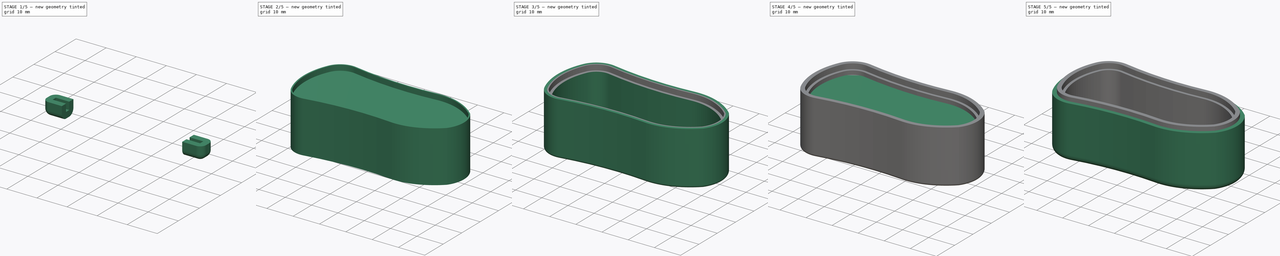
[diagram: build sequence overview — one tinted view per stage of 5, left to right]
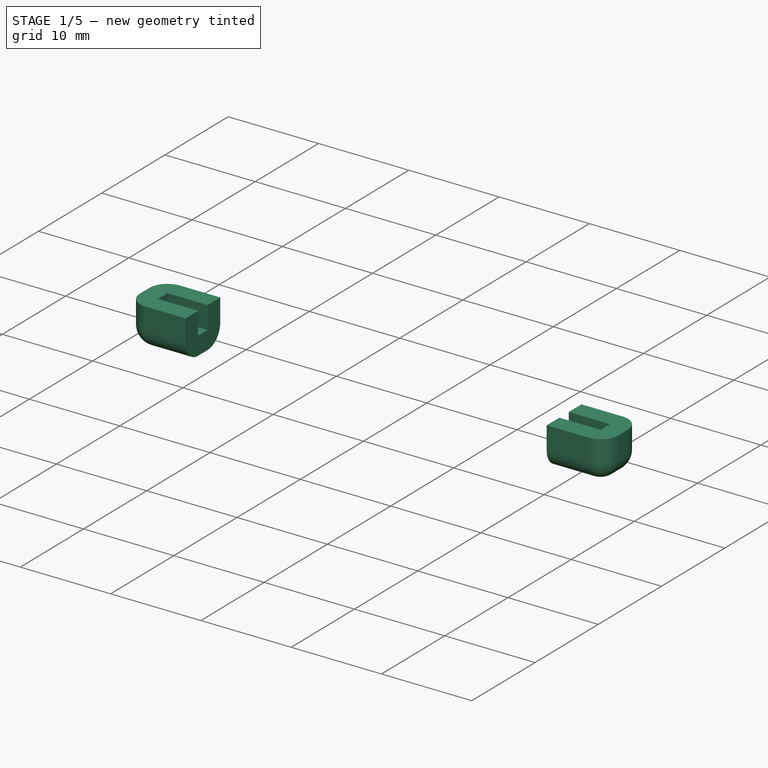
[diagram: stage 1 of 5 — iso view after this stage's code; geometry added in this stage tinted green]
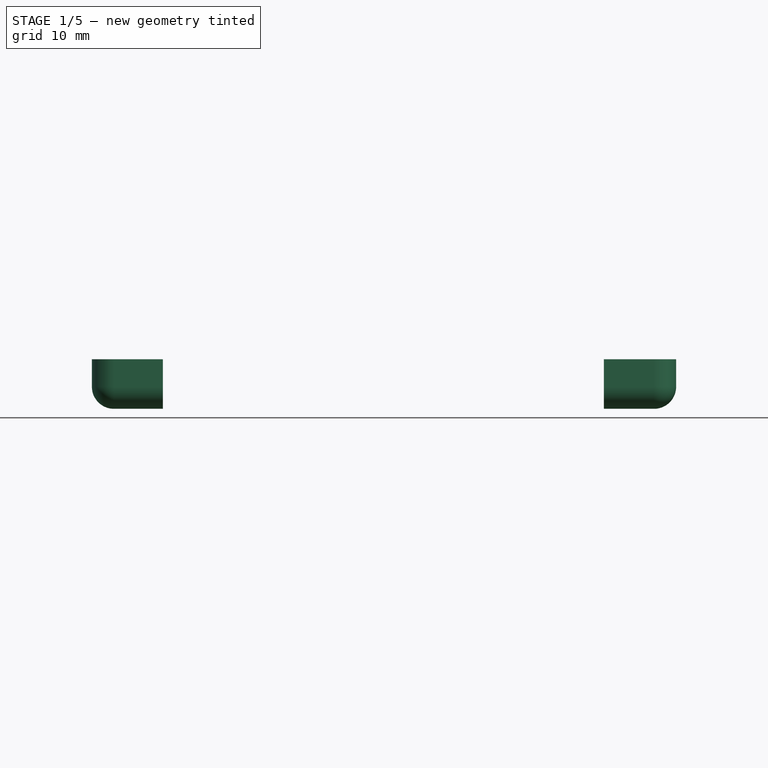
[diagram: stage 1 of 5 — front view after this stage's code; geometry added in this stage tinted green]
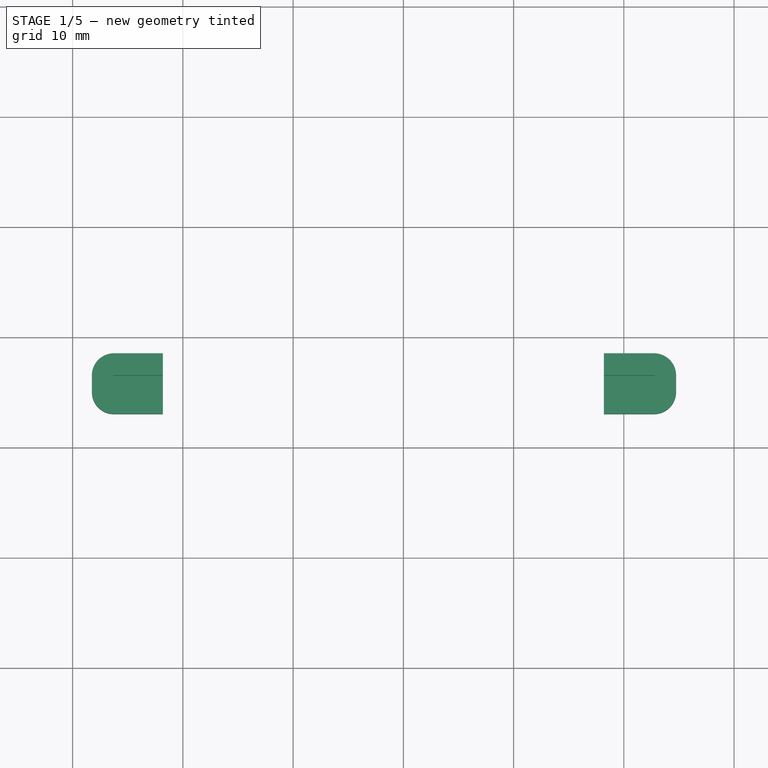
[diagram: stage 1 of 5 — top view after this stage's code; geometry added in this stage tinted green]
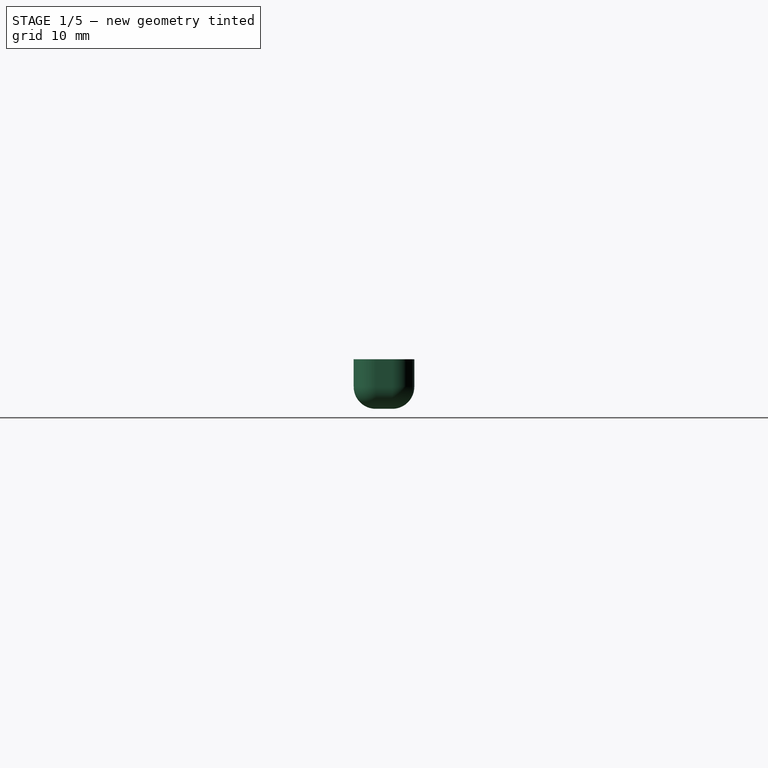
[diagram: stage 1 of 5 — right view after this stage's code; geometry added in this stage tinted green]
FCSTD DOCUMENT  (FreeCAD 0.14R3683 (Git))
Label: power-adapter-cap
License: CC-BY 3.0
LicenseURL: http://creativecommons.org/licenses/by/3.0/
objects: Part::Extrusion×7, Part::Thickness×6, Sketcher::SketchObject×3, Part::Cut×3, Part::MultiFuse×2, Image::ImagePlane×1
note: 21 computed .brp shape members not serialized (recipe doc carries the construction recipe); baked Part::Feature solids carry a one-line shape summary decoded from their .brp

FEATURE [Image::ImagePlane] ImagePlane
  Placement = pos=(-4.037,2.7373,0) rot=(0,0,-1;0.008727rad)
  XSize = 114.964
  YSize = 86.224
FEATURE [Sketcher::SketchObject] Sketch
  sketch-geometry (10):
    g0: ArcOfCircle CenterX=-6.15747 CenterY=0 CenterZ=0 NormalX=0 NormalY=0 NormalZ=1 Radius=24.7336 StartAngle=2.71738 EndAngle=3.56581
    g1: ArcOfCircle CenterX=-22.2713 CenterY=7.2776 CenterZ=0 NormalX=0 NormalY=0 NormalZ=1 Radius=7.05256 StartAngle=1.38761 EndAngle=2.71738
    g2: ArcOfCircle CenterX=0.00643046 CenterY=127.529 CenterZ=0 NormalX=0 NormalY=0 NormalZ=1 Radius=115.245 StartAngle=4.52921 EndAngle=4.80495
    g3: ArcOfCircle CenterX=12.5035 CenterY=-7.10583 CenterZ=0 NormalX=0 NormalY=0 NormalZ=1 Radius=19.9686 StartAngle=1.20311 EndAngle=1.66335
    g4: ArcOfCircle CenterX=10.9808 CenterY=-11.0588 CenterZ=0 NormalX=0 NormalY=0 NormalZ=1 Radius=24.2047 StartAngle=0.801467 EndAngle=1.20311
    g5: ArcOfCircle CenterX=19.1368 CenterY=0 CenterZ=0 NormalX=0 NormalY=0 NormalZ=1 Radius=10.7442 StartAngle=5.65326 EndAngle=6.91311
    g6: ArcOfCircle CenterX=-22.2713 CenterY=-7.2776 CenterZ=0 NormalX=0 NormalY=0 NormalZ=1 Radius=7.05256 StartAngle=3.56581 EndAngle=4.89557
    g7: ArcOfCircle CenterX=0.00643046 CenterY=-127.529 CenterZ=0 NormalX=0 NormalY=0 NormalZ=1 Radius=115.245 StartAngle=1.47824 EndAngle=1.75398
    g8: ArcOfCircle CenterX=12.5035 CenterY=7.10583 CenterZ=0 NormalX=0 NormalY=0 NormalZ=1 Radius=19.9686 StartAngle=4.61983 EndAngle=5.08007
    g9: ArcOfCircle CenterX=10.9808 CenterY=11.0588 CenterZ=0 NormalX=0 NormalY=0 NormalZ=1 Radius=24.2047 StartAngle=5.08007 EndAngle=5.48172
  constraints (27):
    c: Symmetric(g0,g0,g-1)
    c: Coincident(g1,g0)
    c: Coincident(g2,g1)
    c: Coincident(g3,g2)
    c: Tangent(g3,g2)
    c: Coincident(g4,g3)
    c: Tangent(g4,g3)
    c: Coincident(g5,g4)
    c: Coincident(g6,g0)
    c: Coincident(g7,g6)
    c: Coincident(g8,g7)
    c: Coincident(g9,g8)
    c: Coincident(g9,g5)
    c: Symmetric(g1,g6,g-1)
    c: Equal(g6,g1)
    c: Symmetric(g7,g2,g-1)
    c: Equal(g2,g7)
    c: Symmetric(g3,g8,g-1)
    c: Equal(g3,g8)
    c: Symmetric(g4,g5,g-1)
    c: Equal(g4,g9)
    c: DistanceX(g0) = -28.6988
    c: DistanceY(g0) = 10.1805
    c: Tangent(g1,g2)
    c: Tangent(g1,g0)
    c: DistanceX(g1) = -20.9866
    c: DistanceY(g1) = 14.2122
FEATURE [Sketcher::SketchObject] Sketch001
  sketch-geometry (4):
    g0: LineSegment StartX=-25.2564 StartY=7.5 StartZ=0 EndX=23.7436 EndY=7.5 EndZ=0
    g1: LineSegment StartX=23.7436 StartY=7.5 StartZ=0 EndX=23.7436 EndY=6 EndZ=0
    g2: LineSegment StartX=23.7436 StartY=6 StartZ=0 EndX=-25.2564 EndY=6 EndZ=0
    g3: LineSegment StartX=-25.2564 StartY=6 StartZ=0 EndX=-25.2564 EndY=7.5 EndZ=0
  constraints (11):
    c: Coincident(g0,g1)
    c: Coincident(g1,g2)
    c: Coincident(g2,g3)
    c: Coincident(g3,g0)
    c: Horizontal(g0)
    c: Horizontal(g2)
    c: Vertical(g1)
    c: Vertical(g3)
    c: DistanceX(g0) = 49
    c: DistanceY(g3) = 1.5
    c: DistanceY(g-1,g2) = 6
FEATURE [Part::Extrusion] Extrude002
  Base = -> Sketch001
  Dir = (0,0,2.5)
  Placement = pos=(0,0,2) rot=(0,0,1;0rad)
  Solid = true
FEATURE [Part::Thickness] Thickness002
  Faces = -> Extrude002 [Face6]
  Intersection = false
  Join = 0
  Mode = 0
  SelfIntersection = false
  Value = 2
FEATURE [Sketcher::SketchObject] Sketch002
  sketch-geometry (4):
    g0: LineSegment StartX=-20.8157 StartY=9.99773 StartZ=0 EndX=19.1843 EndY=9.99773 EndZ=0
    g1: LineSegment StartX=19.1843 StartY=9.99773 StartZ=0 EndX=19.1843 EndY=1.97796 EndZ=0
    g2: LineSegment StartX=19.1843 StartY=1.97796 StartZ=0 EndX=-20.8157 EndY=1.97796 EndZ=0
    g3: LineSegment StartX=-20.8157 StartY=1.97796 StartZ=0 EndX=-20.8157 EndY=9.99773 EndZ=0
  constraints (10):
    c: Coincident(g0,g1)
    c: Coincident(g1,g2)
    c: Coincident(g2,g3)
    c: Coincident(g3,g0)
    c: Horizontal(g0)
    c: Horizontal(g2)
    c: Vertical(g1)
    c: Vertical(g3)
    c: DistanceX(g0) = 40
    c: DistanceX(g-2,g0) = -20.8157
FEATURE [Part::Extrusion] Extrude003
  Base = -> Sketch002
  Dir = (0,0,5)
  Solid = true
FEATURE [Part::Cut] Cut
  Base = -> Thickness002
  Placement = pos=(-1,-1,-0.5) rot=(0,0,1;0rad)
  Tool = -> Extrude003
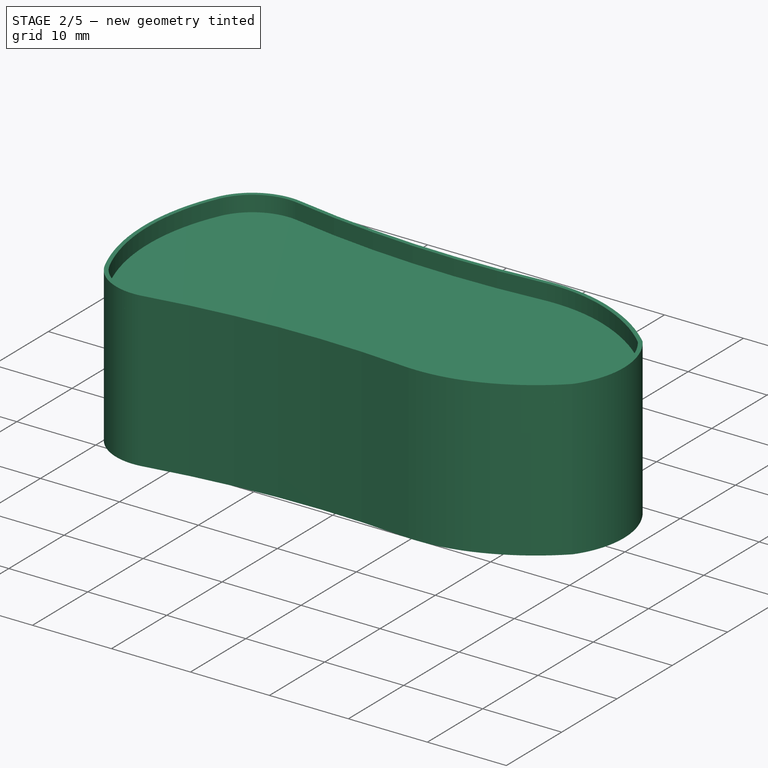
[diagram: stage 2 of 5 — iso view after this stage's code; geometry added in this stage tinted green]
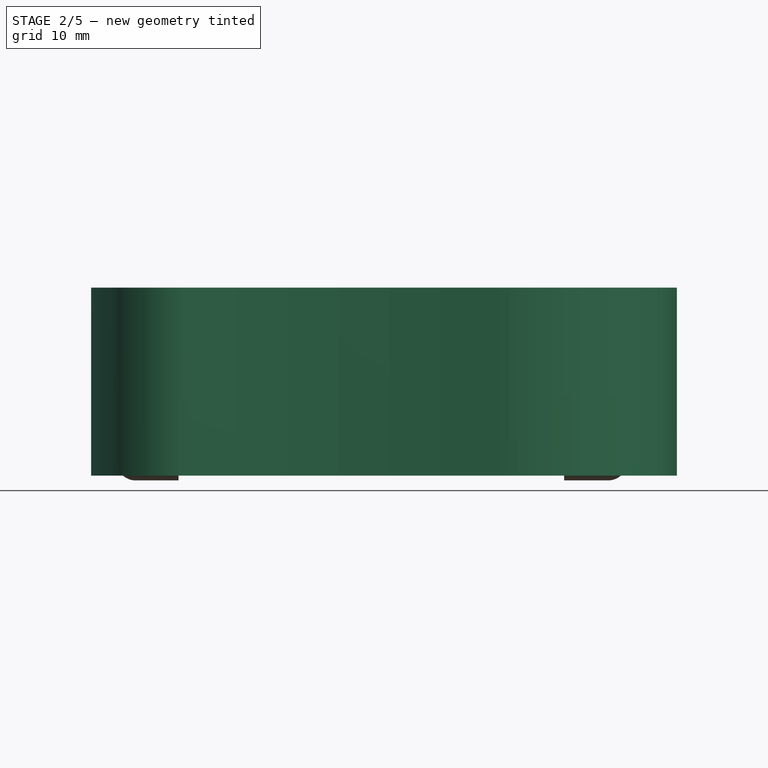
[diagram: stage 2 of 5 — front view after this stage's code; geometry added in this stage tinted green]
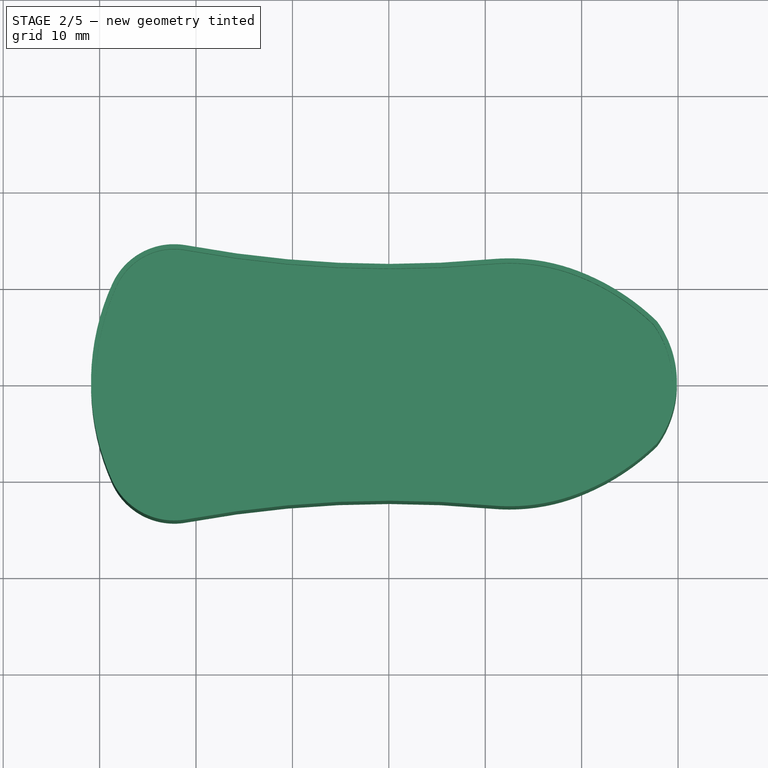
[diagram: stage 2 of 5 — top view after this stage's code; geometry added in this stage tinted green]
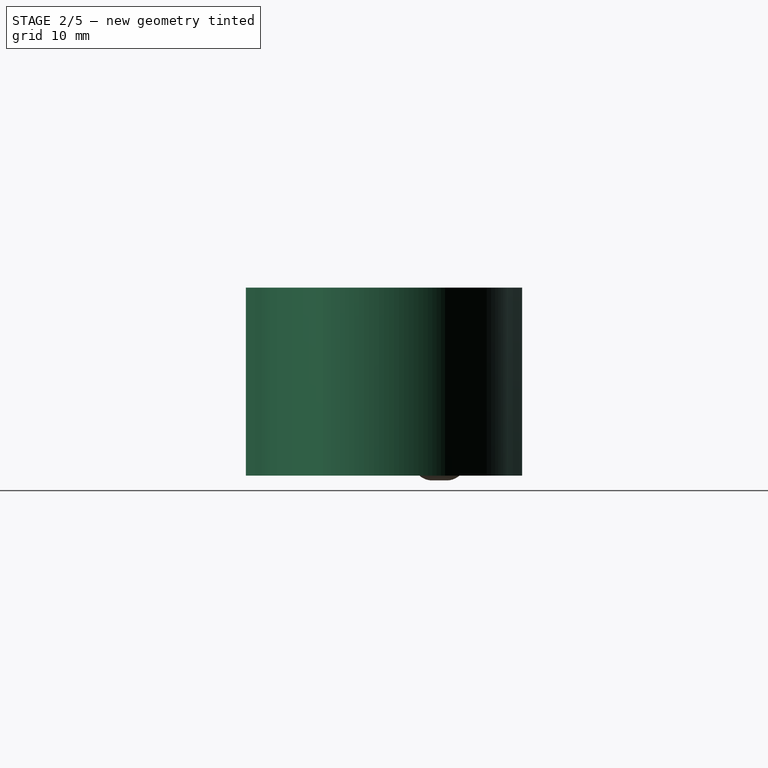
[diagram: stage 2 of 5 — right view after this stage's code; geometry added in this stage tinted green]
FEATURE [Part::Extrusion] Extrude006
  Base = -> Sketch
  Dir = (0,0,17.5)
  Solid = true
FEATURE [Part::Extrusion] Extrude007
  Base = -> Sketch
  Dir = (0,0,19.5)
  Solid = true
FEATURE [Part::Thickness] Thickness006
  Faces = -> Extrude007 [Face12]
  Intersection = false
  Join = 2
  Mode = 0
  SelfIntersection = false
  Value = -0.5
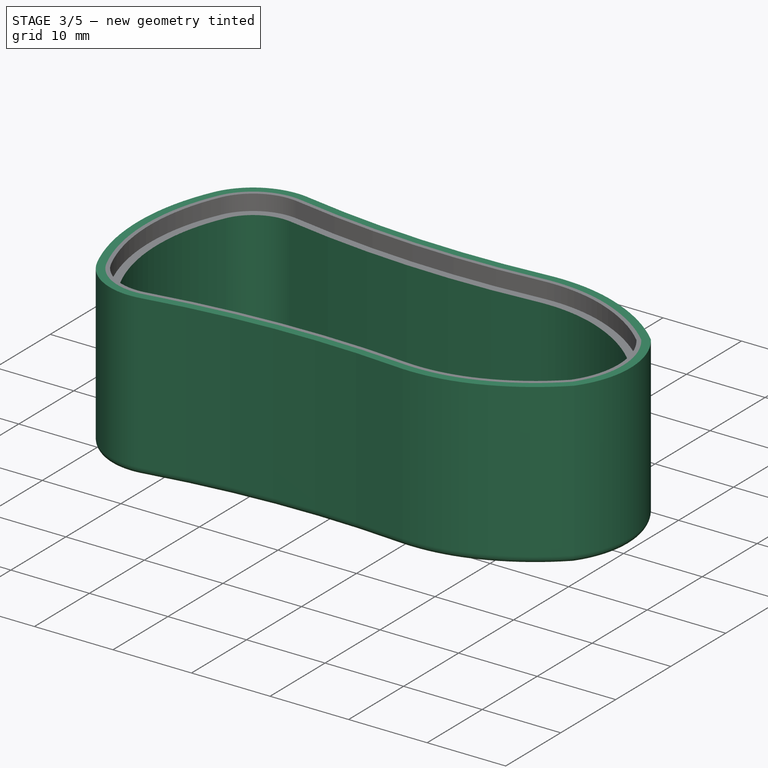
[diagram: stage 3 of 5 — iso view after this stage's code; geometry added in this stage tinted green]
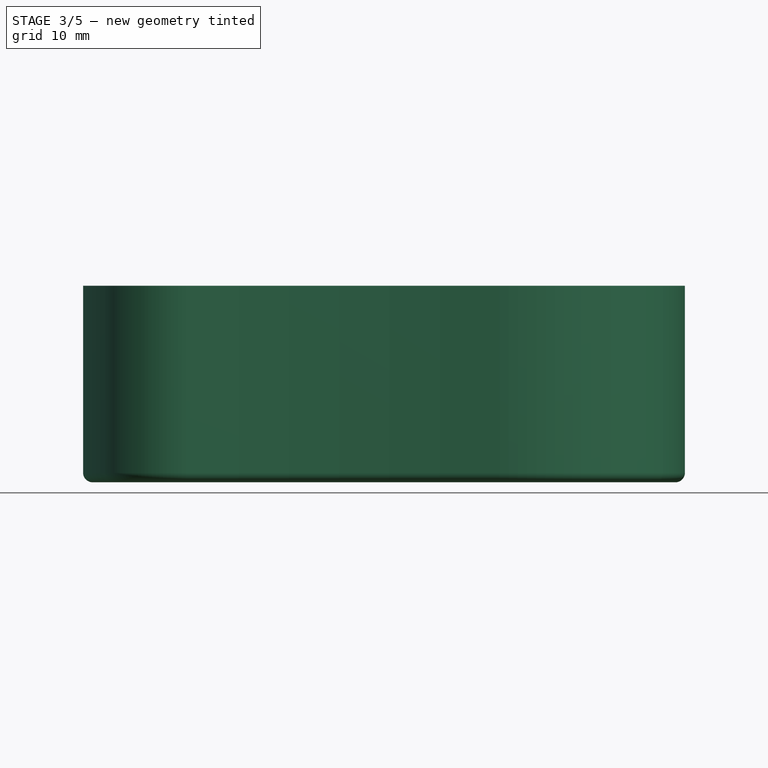
[diagram: stage 3 of 5 — front view after this stage's code; geometry added in this stage tinted green]
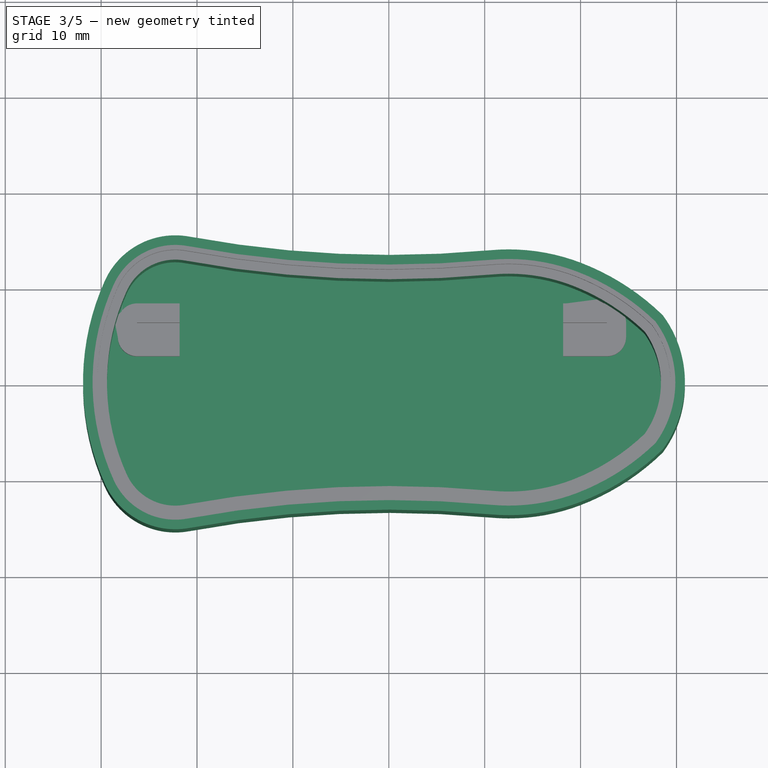
[diagram: stage 3 of 5 — top view after this stage's code; geometry added in this stage tinted green]
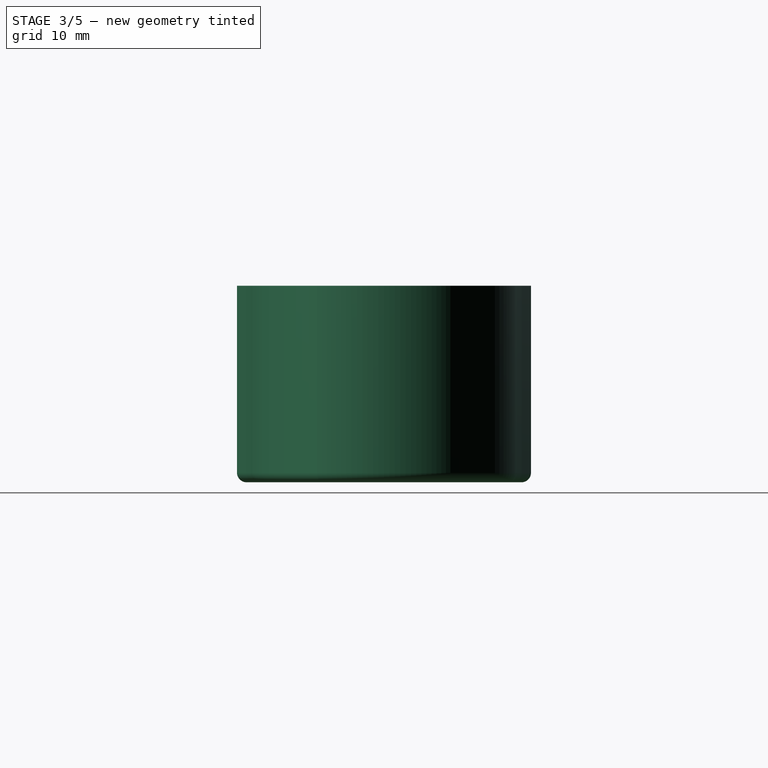
[diagram: stage 3 of 5 — right view after this stage's code; geometry added in this stage tinted green]
FEATURE [Part::Extrusion] Extrude
  Base = -> Sketch
  Dir = (0,0,19.5)
  Solid = true
FEATURE [Part::Thickness] Thickness
  Faces = -> Extrude [Face12]
  Intersection = false
  Join = 0
  Mode = 0
  SelfIntersection = false
  Value = 1
FEATURE [Part::Thickness] Thickness005
  Faces = -> Extrude006 [Face12]
  Intersection = false
  Join = 2
  Mode = 0
  SelfIntersection = false
  Value = -1.5
FEATURE [Part::MultiFuse] Fusion
  Shapes = -> [Cut,Thickness006,Thickness005,Thickness]
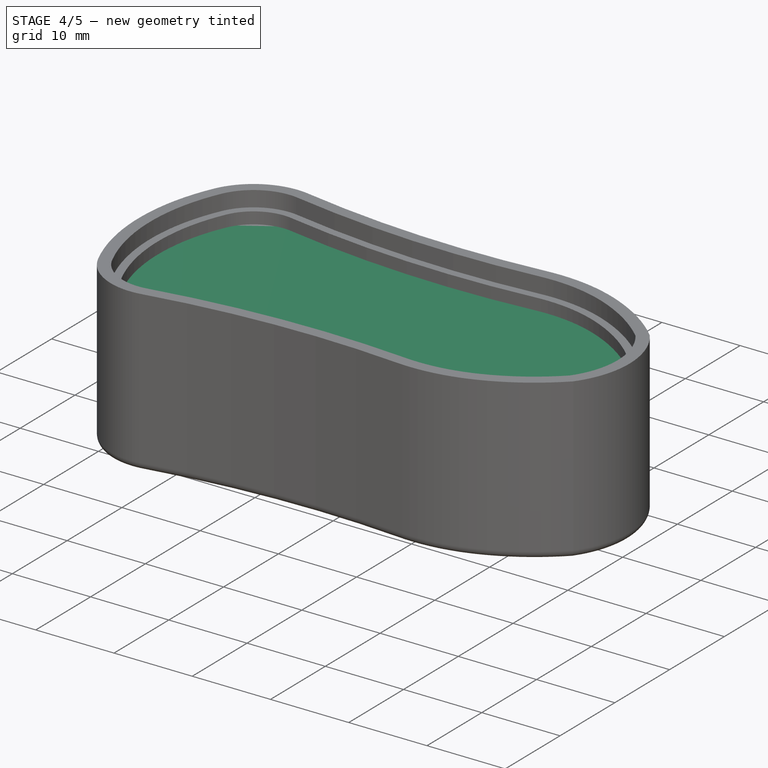
[diagram: stage 4 of 5 — iso view after this stage's code; geometry added in this stage tinted green]
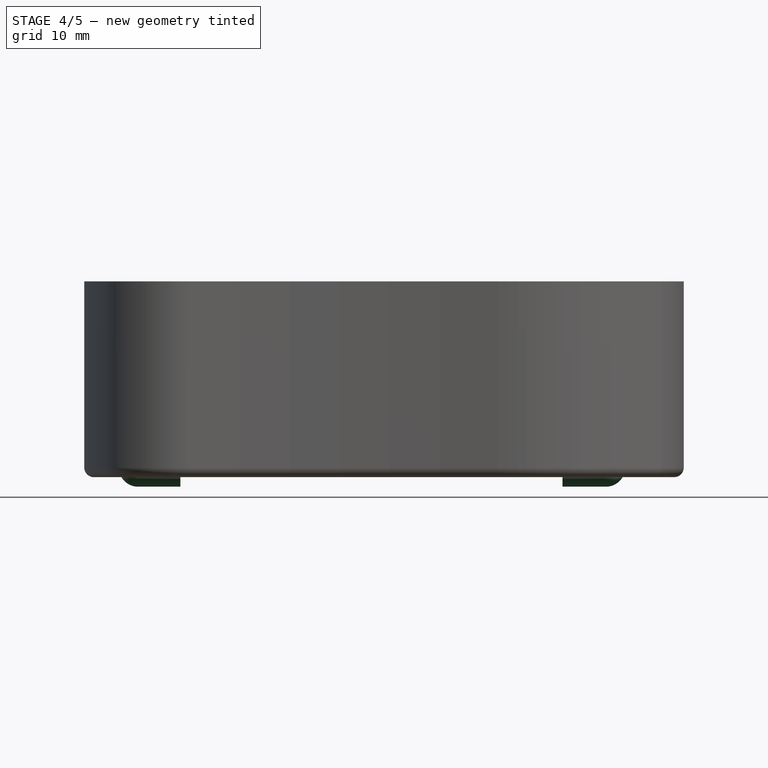
[diagram: stage 4 of 5 — front view after this stage's code; geometry added in this stage tinted green]
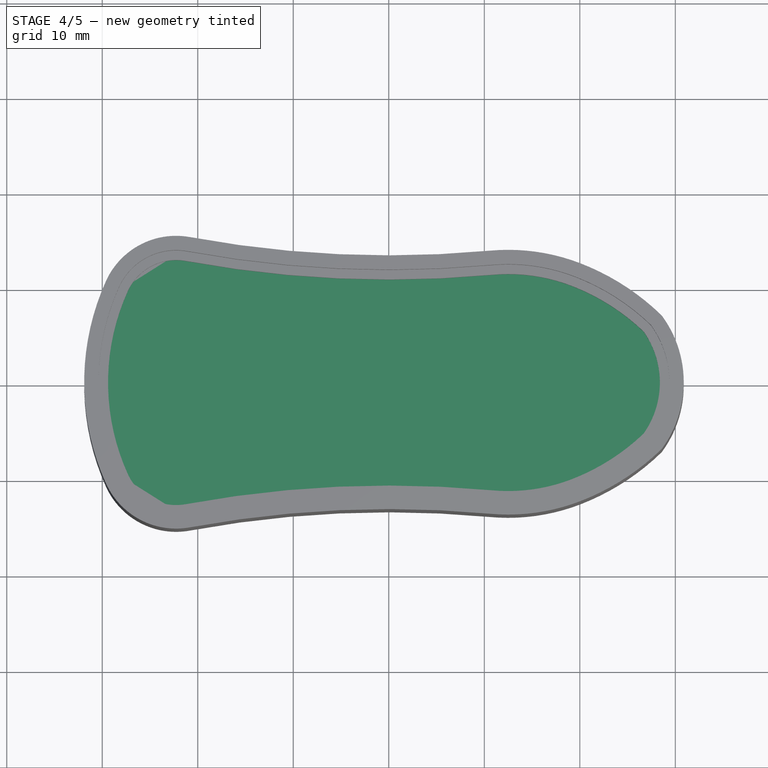
[diagram: stage 4 of 5 — top view after this stage's code; geometry added in this stage tinted green]
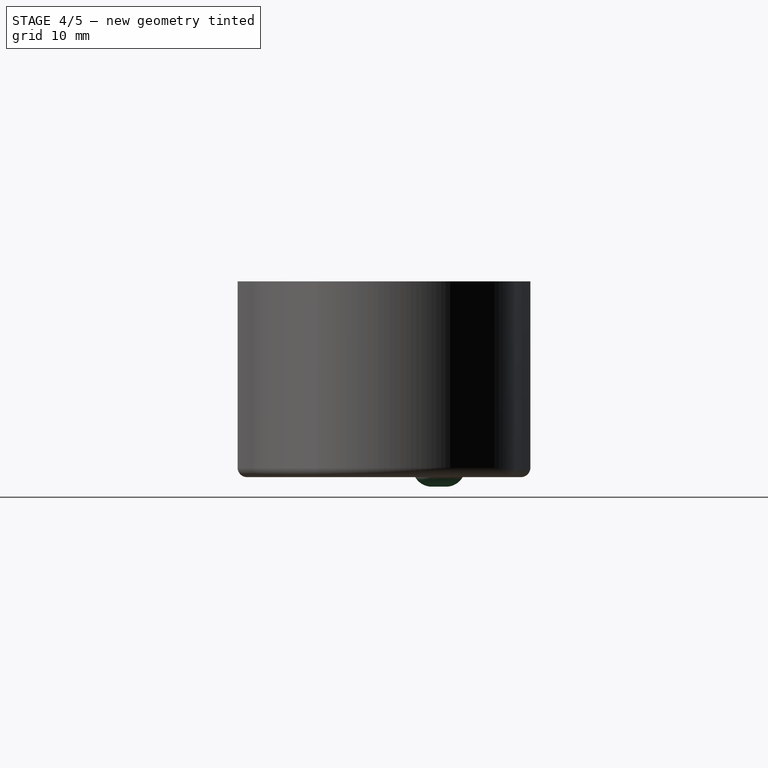
[diagram: stage 4 of 5 — right view after this stage's code; geometry added in this stage tinted green]
FEATURE [Part::Extrusion] Extrude005
  Base = -> Sketch
  Dir = (0,0,2)
  Placement = pos=(0,0,16) rot=(0,0,1;0rad)
  Solid = true
FEATURE [Part::Thickness] Thickness004
  Faces = -> Extrude005 [Face12]
  Intersection = false
  Join = 0
  Mode = 0
  SelfIntersection = false
  Value = 1
FEATURE [Part::Cut] Cut002
  Base = -> Thickness002
  Placement = pos=(-1,-1,-2) rot=(0,0,1;0rad)
  Tool = -> Extrude003
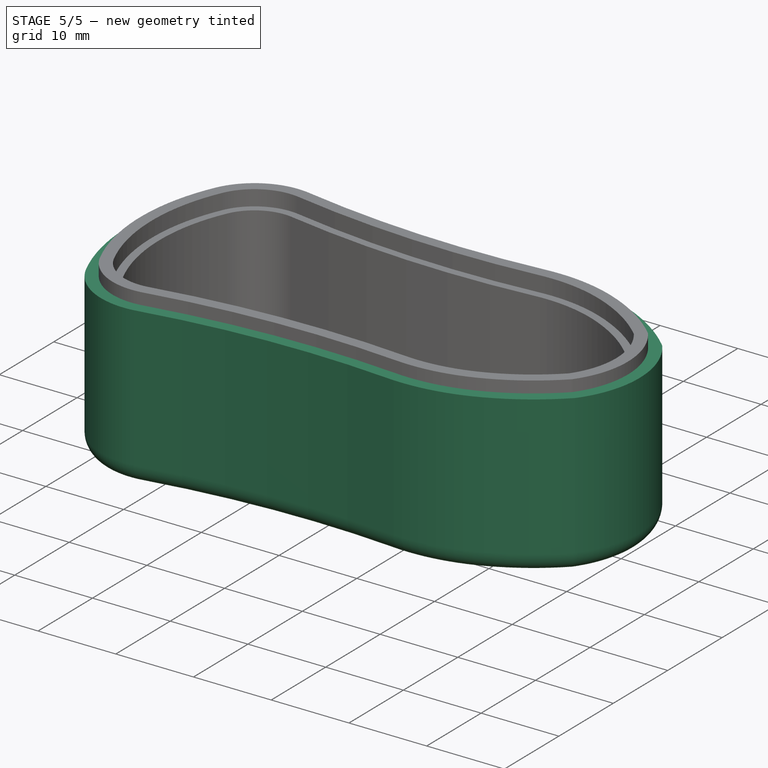
[diagram: stage 5 of 5 — iso view after this stage's code; geometry added in this stage tinted green]
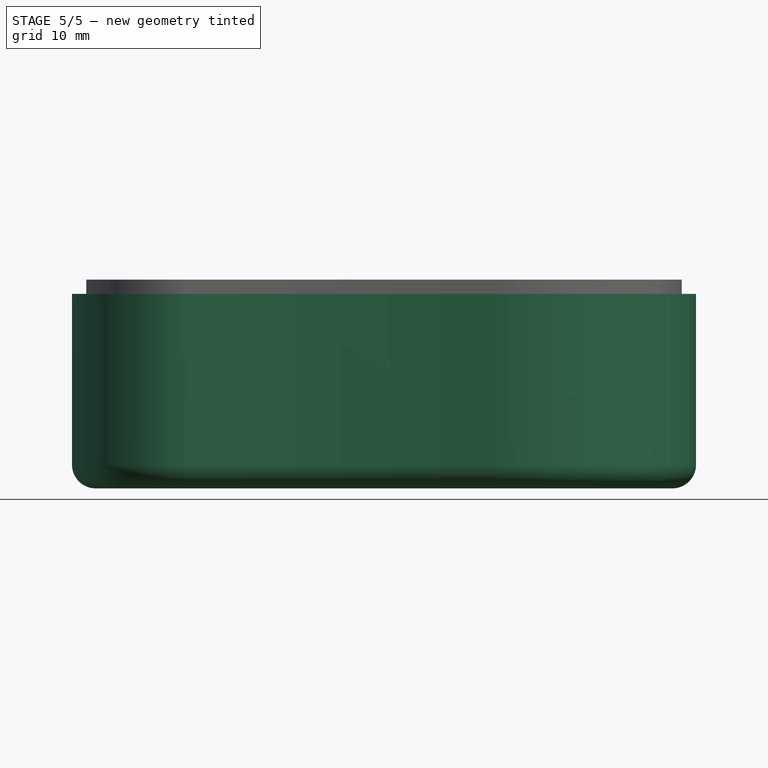
[diagram: stage 5 of 5 — front view after this stage's code; geometry added in this stage tinted green]
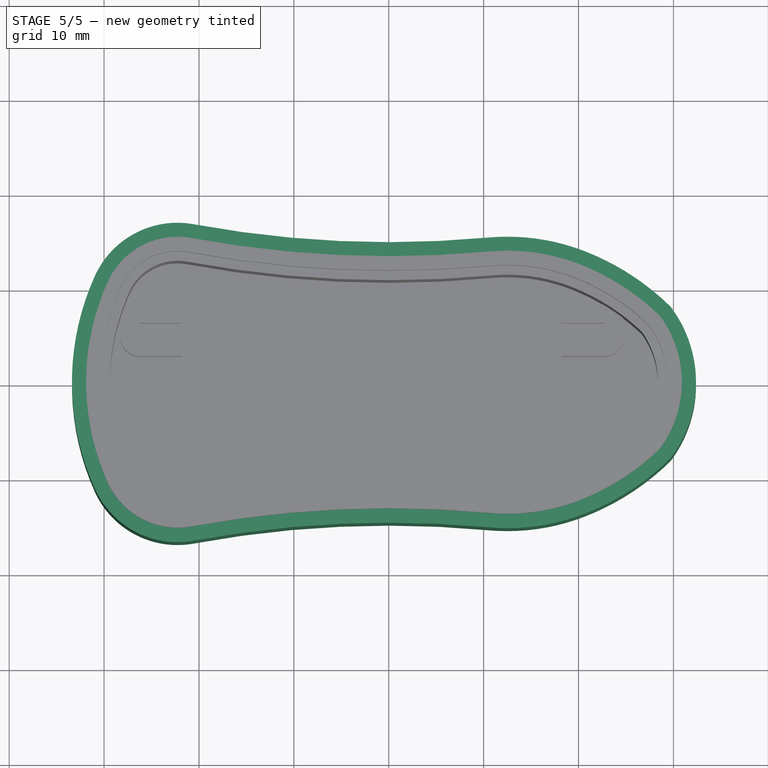
[diagram: stage 5 of 5 — top view after this stage's code; geometry added in this stage tinted green]
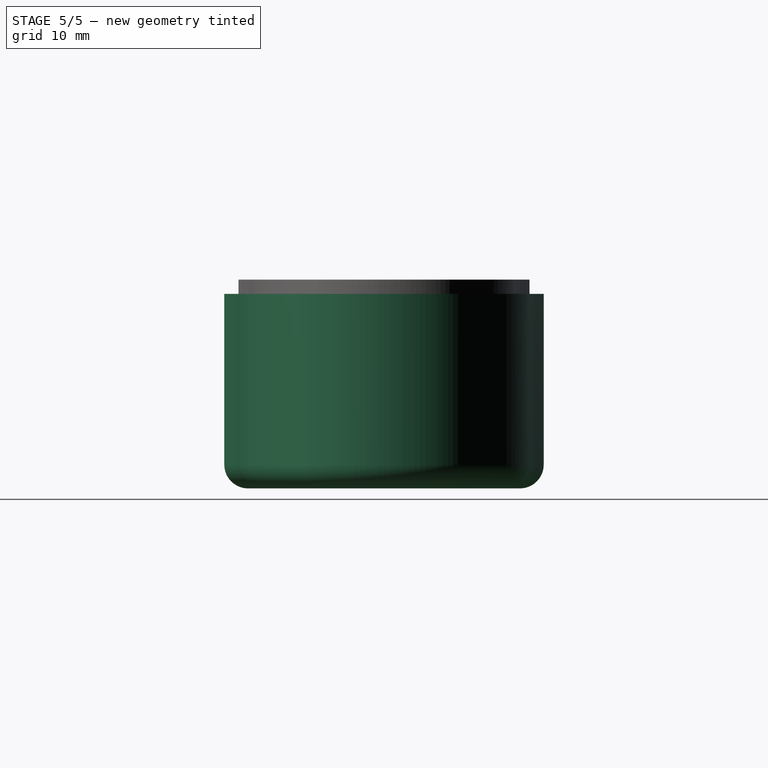
[diagram: stage 5 of 5 — right view after this stage's code; geometry added in this stage tinted green]
FEATURE [Part::Extrusion] Extrude004
  Base = -> Sketch
  Dir = (0,0,18)
  Solid = true
FEATURE [Part::Thickness] Thickness003
  Faces = -> Extrude004 [Face12]
  Intersection = false
  Join = 0
  Mode = 0
  SelfIntersection = false
  Value = 2.5
FEATURE [Part::Cut] Cut001
  Base = -> Thickness003
  Tool = -> Thickness004
FEATURE [Part::MultiFuse] Fusion002
  Shapes = -> [Cut001,Cut002]
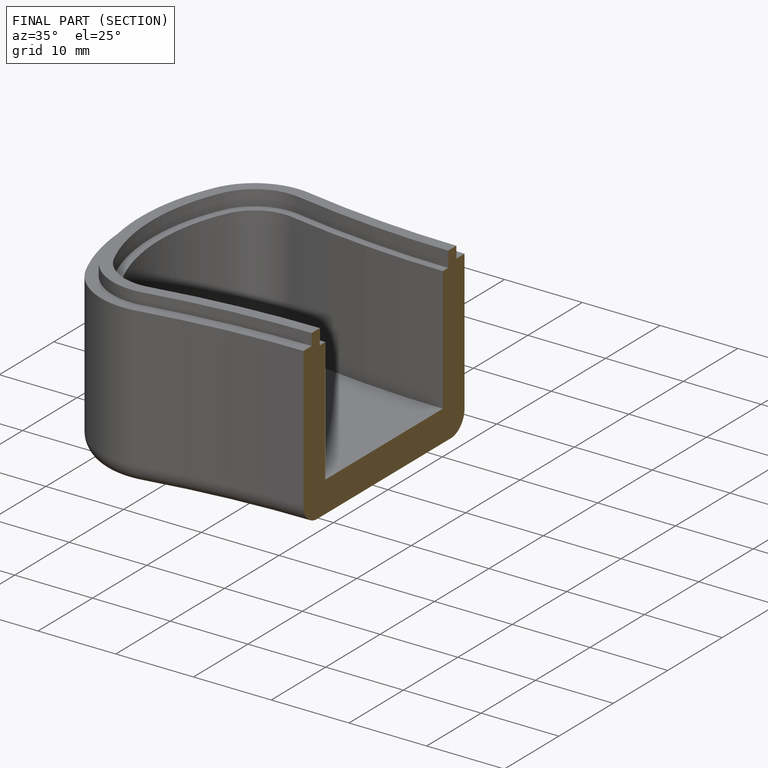
[diagram: finished part — half-section view (interior)]
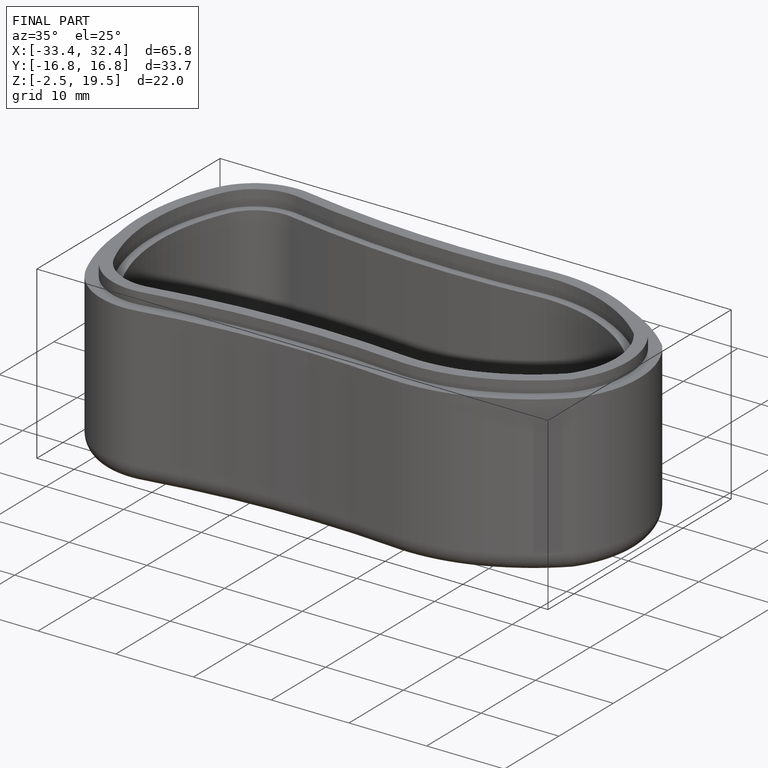
[diagram: finished part — iso view with bounding-box wireframe]
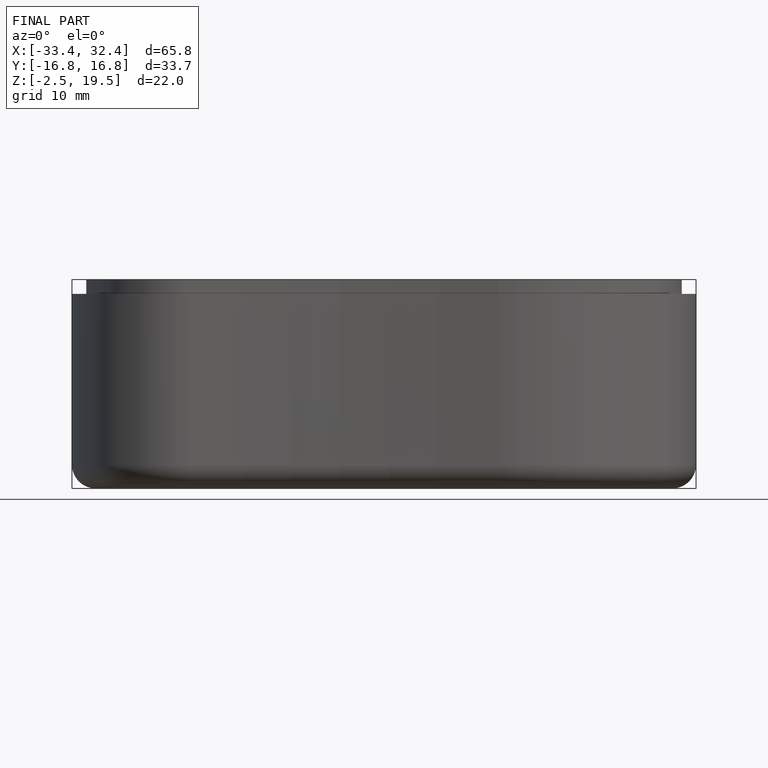
[diagram: finished part — front view with bounding-box wireframe]
